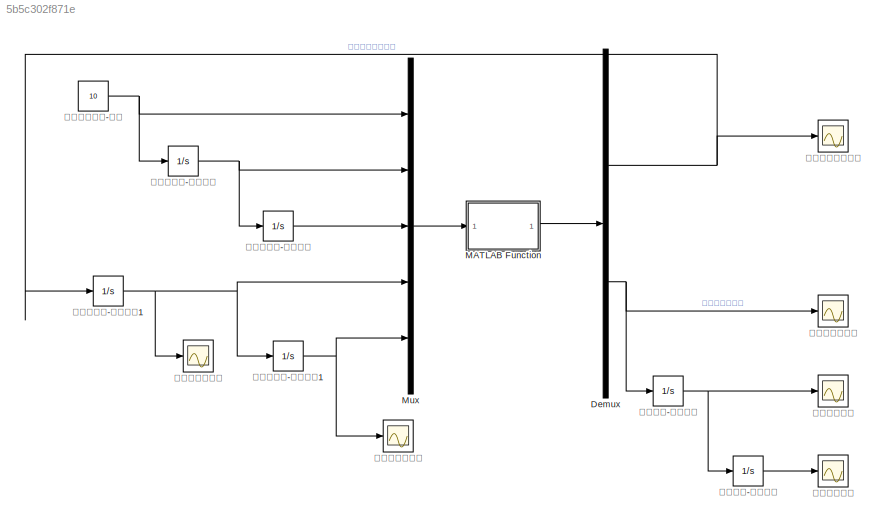
MODEL slx_5b5c302f871e
KIND model
CONFIG AbsTol = auto
CONFIG EnableMultiTasking = off
CONFIG FixedStep = auto
CONFIG MaxStep = 0.0001
CONFIG MinStep = auto
CONFIG RelTol = 1e-3
CONFIG SampleTimeConstraint = Unconstrained
CONFIG Solver = ode45
CONFIG SolverName = ode45
CONFIG StartTime = 0.0
CONFIG StopTime = 10
BLOCK [Demux] Demux
  DisplayOption = bar
  Outputs = 2
  Ports = [1, 2]
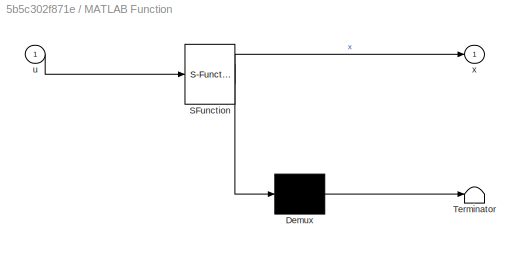
BLOCK [SubSystem] MATLAB Function
  ErrorFcn = Stateflow.Translate.translate
  PermitHierarchicalResolution = ExplicitOnly
  Ports = [1, 1]
  RequestExecContextInheritance = off
  SFBlockType = MATLAB Function
  TreatAsAtomicUnit = on
BLOCK [Demux] MATLAB Function/ Demux 
  Outputs = 1
  Ports = [1, 1]
BLOCK [S-Function] MATLAB Function/ SFunction 
  EnableBusSupport = on
  FunctionName = sf_sfun
  PortCounts = [1 2]
  Ports = [1, 2]
  SFcnIsStateOwnerBlock = off
  SFunctionDeploymentMode = off
  Tag = Stateflow S-Function acceleration 2
BLOCK [Terminator] MATLAB Function/ Terminator 
BLOCK [Inport] MATLAB Function/u
  IconDisplay = Port number
BLOCK [Outport] MATLAB Function/x
  IconDisplay = Port number
BLOCK [Mux] Mux
  DisplayOption = bar
  Inputs = 5
  Ports = [5, 1]
BLOCK [Integrator] 曲柄角位置-一次积分
  Ports = [1, 1]
BLOCK [Constant] 曲柄角加速度-常量
  Value = 10
BLOCK [Integrator] 曲柄角速度-一次积分
  Ports = [1, 1]
BLOCK [Integrator] 滑块位置-一次积分
  InitialCondition = 70
  Ports = [1, 1]
BLOCK [Scope] 滑块位置监视
  Floating = off
  NumInputPorts = 1
  Ports = [1]
  ScopeSpecificationString = Simulink.scopes.TimeScopeBlockCfg('CurrentConfiguration', extmgr.ConfigurationSet(extmgr.Configuration('Core','General UI',true),extmgr.Configuration('Core','Source UI',true),extmgr.Configuration('Sources','WiredSimulink',true,'DataLoggingVariableName','ScopeData2'),extmgr.Configuration('Visuals','Time Domain',true,'SerializedDisplays',{struct('MinYLimReal','36.25','MaxYLimReal','73.75','YLabelRea...<+1350ch>
BLOCK [Scope] 滑块加速度监视
  Floating = off
  NumInputPorts = 1
  Ports = [1]
  ScopeSpecificationString = Simulink.scopes.TimeScopeBlockCfg('CurrentConfiguration', extmgr.ConfigurationSet(extmgr.Configuration('Core','General UI',true),extmgr.Configuration('Core','Source UI',true),extmgr.Configuration('Sources','WiredSimulink',true),extmgr.Configuration('Visuals','Time Domain',true,'SerializedDisplays',{struct('MinYLimReal','-226834.43711','MaxYLimReal','146303.73282','YLabelReal','','MinYLimMag','    ...<+1398ch>
BLOCK [Integrator] 滑块速度-一次积分
  Ports = [1, 1]
BLOCK [Scope] 滑块速度监视
  Floating = off
  NumInputPorts = 1
  Ports = [1]
  ScopeSpecificationString = Simulink.scopes.TimeScopeBlockCfg('CurrentConfiguration', extmgr.ConfigurationSet(extmgr.Configuration('Core','General UI',true),extmgr.Configuration('Core','Source UI',true),extmgr.Configuration('Sources','WiredSimulink',true,'DataLoggingVariableName','ScopeData1'),extmgr.Configuration('Visuals','Time Domain',true,'SerializedDisplays',{struct('MinYLimReal','-1938.80255','MaxYLimReal','1934.67057'...<+1423ch>
BLOCK [Integrator] 连杆角位置-一次积分1
  Ports = [1, 1]
BLOCK [Scope] 连杆角位置监视
  Floating = off
  NumInputPorts = 1
  Ports = [1]
  ScopeSpecificationString = Simulink.scopes.TimeScopeBlockCfg('CurrentConfiguration', extmgr.ConfigurationSet(extmgr.Configuration('Core','General UI',true),extmgr.Configuration('Core','Source UI',true),extmgr.Configuration('Sources','WiredSimulink',true,'DataLoggingVariableName','ScopeData2'),extmgr.Configuration('Visuals','Time Domain',true,'SerializedDisplays',{struct('MinYLimReal','-0.34528','MaxYLimReal','0.34528','YLab...<+1370ch>
BLOCK [Scope] 连杆角加速度监视
  Floating = off
  NumInputPorts = 1
  Ports = [1]
  ScopeSpecificationString = Simulink.scopes.TimeScopeBlockCfg('CurrentConfiguration', extmgr.ConfigurationSet(extmgr.Configuration('Core','General UI',true),extmgr.Configuration('Core','Source UI',true),extmgr.Configuration('Sources','WiredSimulink',true,'DataLoggingVariableName','ScopeData3'),extmgr.Configuration('Visuals','Time Domain',true,'SerializedDisplays',{struct('MinYLimReal','-3508.80039','MaxYLimReal','3526.61963'...<+1421ch>
BLOCK [Integrator] 连杆角速度-一次积分1
  Ports = [1, 1]
BLOCK [Scope] 连杆角速度监视
  Floating = off
  NumInputPorts = 1
  Ports = [1]
  ScopeSpecificationString = Simulink.scopes.TimeScopeBlockCfg('CurrentConfiguration', extmgr.ConfigurationSet(extmgr.Configuration('Core','General UI',true),extmgr.Configuration('Core','Source UI',true),extmgr.Configuration('Sources','WiredSimulink',true,'DataLoggingVariableName','ScopeData1'),extmgr.Configuration('Visuals','Time Domain',true,'SerializedDisplays',{struct('MinYLimReal','-33.95769','MaxYLimReal','33.88522','YL...<+1376ch>
NET Demux:1 -> 连杆角加速度监视:1, 连杆角速度-一次积分1:1
NET Demux:2 -> 滑块加速度监视:1, 滑块速度-一次积分:1
LINE MATLAB Function:1 -> Demux:1
LINE Mux:1 -> MATLAB Function:1
LINE 曲柄角位置-一次积分:1 -> Mux:3
NET 曲柄角加速度-常量:1 -> Mux:1, 曲柄角速度-一次积分:1
NET 曲柄角速度-一次积分:1 -> Mux:2, 曲柄角位置-一次积分:1
LINE 滑块位置-一次积分:1 -> 滑块位置监视:1
NET 滑块速度-一次积分:1 -> 滑块位置-一次积分:1, 滑块速度监视:1
NET 连杆角位置-一次积分1:1 -> Mux:5, 连杆角位置监视:1
NET 连杆角速度-一次积分1:1 -> Mux:4, 连杆角位置-一次积分1:1, 连杆角速度监视:1
note: NET lines group one-source signal fan-out (src -> all destinations, sorted); 1:1 wires keep LINE
CHART MATLAB Function states=1 transitions=1
  STATE_LABEL 'eML_blk_kernel()'
  STATE_LABEL 'SCRIPT:\nfunction x = compa(u)\nr1=15;r2=55;\na=[r2*sin(u(5)) 1;r2*cos(u(5)) 0];\nb=[-r1*cos(u(3))*u(2)^2-r2*cos(u(5))*u(4)^2-r1*sin(u(3))*u(1);r1*sin(u(3))*u(2)^2+r2*sin(u(5))*u(4)^2-r1*cos(u(3))*u(1)];\nx = inv(a)*b;\n%曲柄长15mm，连杆长55mm\n%u(1)指征曲柄角加速度，u(2)指征曲柄角速度，u(3)指征曲柄角位置，u(4)指征连杆角速度，u(5)指示连杆角位置\n%x(1)指征连杆角加速度，x(2)指征滑块加速度\n'
